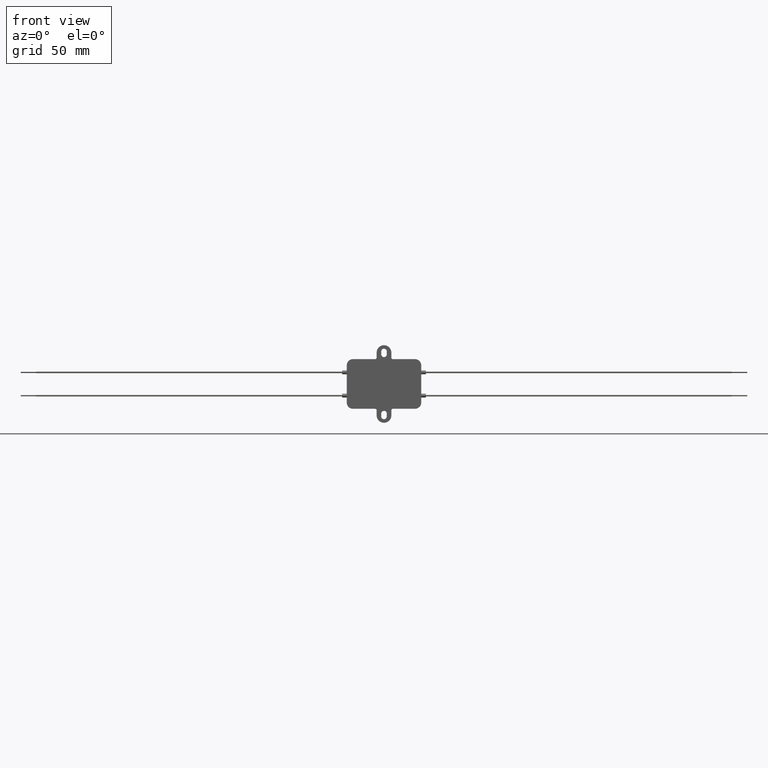
[diagram: clean part render]
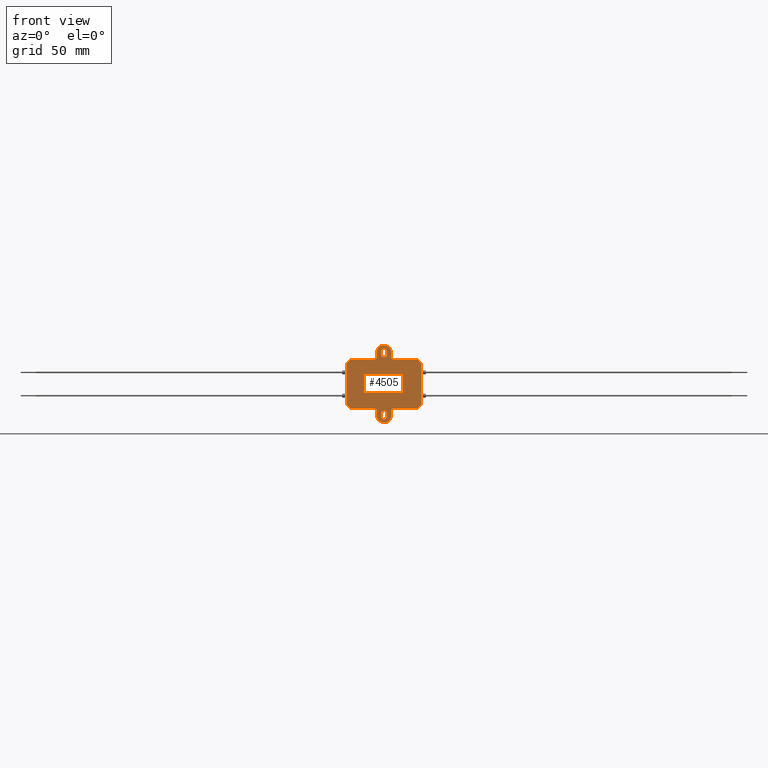
[diagram: same view with one face highlighted and labeled with its STEP entity id]
A machine part, front view. The second image highlights one B-rep face of the part: STEP entity #4505.
In plain terms, the highlighted planar face has unit normal (0, -1, 0).
Its self-contained STEP definition (entity closure, byte-faithful):
#31 = CARTESIAN_POINT ( 'NONE',  ( 19.25000000000000000, 0.0000000000000000000, 4.250000000000003600 ) ) ;
#44 = CARTESIAN_POINT ( 'NONE',  ( 24.00000000000000700, 0.0000000000000000000, -36.25000000000000700 ) ) ;
#54 = DIRECTION ( 'NONE',  ( 0.0000000000000000000, 0.0000000000000000000, -1.000000000000000000 ) ) ;
#55 = ORIENTED_EDGE ( 'NONE', *, *, #1021, .F. ) ;
#83 = VECTOR ( 'NONE', #1782, 1000.000000000000000 ) ;
#124 = VERTEX_POINT ( 'NONE', #849 ) ;
#139 = CARTESIAN_POINT ( 'NONE',  ( 19.25000000000000400, 0.0000000000000000000, 1.000000000000000900 ) ) ;
#186 = AXIS2_PLACEMENT_3D ( 'NONE', #2127, #4922, #2941 ) ;
#209 = FACE_BOUND ( 'NONE', #1481, .T. ) ;
#217 = CARTESIAN_POINT ( 'NONE',  ( 28.75000000000000400, 0.0000000000000000000, -36.25000000000000700 ) ) ;
#220 = CARTESIAN_POINT ( 'NONE',  ( 19.25000000000000000, 0.0000000000000000000, 4.250000000000003600 ) ) ;
#224 = LINE ( 'NONE', #4298, #4171 ) ;
#241 = CARTESIAN_POINT ( 'NONE',  ( 4.000000000000000000, 0.0000000000000000000, 0.0000000000000000000 ) ) ;
#285 = VERTEX_POINT ( 'NONE', #3720 ) ;
#315 = VERTEX_POINT ( 'NONE', #3000 ) ;
#354 = DIRECTION ( 'NONE',  ( -1.000000000000000000, -0.0000000000000000000, -0.0000000000000000000 ) ) ;
#378 = VERTEX_POINT ( 'NONE', #4230 ) ;
#381 = CIRCLE ( 'NONE', #3129, 1.799999999999996000 ) ;
#429 = DIRECTION ( 'NONE',  ( 0.0000000000000000000, 0.0000000000000000000, -1.000000000000000000 ) ) ;
#472 = CARTESIAN_POINT ( 'NONE',  ( 29.75000000000000400, 0.0000000000000000000, 1.000000000000000000 ) ) ;
#485 = CIRCLE ( 'NONE', #4390, 4.000000000000000000 ) ;
#489 = CARTESIAN_POINT ( 'NONE',  ( 24.00000000000000700, 0.0000000000000000000, -35.10000000000000900 ) ) ;
#563 = ORIENTED_EDGE ( 'NONE', *, *, #1320, .T. ) ;
#571 = ORIENTED_EDGE ( 'NONE', *, *, #2737, .T. ) ;
#585 = CARTESIAN_POINT ( 'NONE',  ( 24.00000000000000700, 0.0000000000000000000, -36.90000000000000600 ) ) ;
#606 = CARTESIAN_POINT ( 'NONE',  ( 28.75000000000000400, 0.0000000000000000000, 4.250000000000003600 ) ) ;
#634 = VERTEX_POINT ( 'NONE', #2006 ) ;
#701 = DIRECTION ( 'NONE',  ( -0.0000000000000000000, 1.000000000000000000, -0.0000000000000000000 ) ) ;
#705 = FACE_BOUND ( 'NONE', #1781, .T. ) ;
#732 = AXIS2_PLACEMENT_3D ( 'NONE', #3171, #802, #54 ) ;
#786 = CARTESIAN_POINT ( 'NONE',  ( 24.00000000000000700, 0.0000000000000000000, 4.900000000000001200 ) ) ;
#802 = DIRECTION ( 'NONE',  ( 0.0000000000000000000, -1.000000000000000000, 0.0000000000000000000 ) ) ;
#828 = CARTESIAN_POINT ( 'NONE',  ( 48.00000000000000000, 0.0000000000000000000, -28.00000000000000000 ) ) ;
#837 = DIRECTION ( 'NONE',  ( -8.163404592832026100E-016, 0.0000000000000000000, 1.000000000000000000 ) ) ;
#843 = CARTESIAN_POINT ( 'NONE',  ( 0.0000000000000000000, 0.0000000000000000000, 0.0000000000000000000 ) ) ;
#849 = CARTESIAN_POINT ( 'NONE',  ( 44.00000000000000000, 0.0000000000000000000, 0.0000000000000000000 ) ) ;
#876 = ORIENTED_EDGE ( 'NONE', *, *, #2412, .T. ) ;
#900 = AXIS2_PLACEMENT_3D ( 'NONE', #2421, #4441, #1318 ) ;
#938 = VERTEX_POINT ( 'NONE', #1136 ) ;
#954 = DIRECTION ( 'NONE',  ( 0.0000000000000000000, 0.0000000000000000000, -1.000000000000000000 ) ) ;
#986 = CIRCLE ( 'NONE', #2913, 4.750000000000002700 ) ;
#1004 = DIRECTION ( 'NONE',  ( 0.0000000000000000000, -0.0000000000000000000, -1.000000000000000000 ) ) ;
#1005 = LINE ( 'NONE', #2366, #4525 ) ;
#1006 = CARTESIAN_POINT ( 'NONE',  ( 24.00000000000000700, 0.0000000000000000000, 6.699999999999997500 ) ) ;
#1021 = EDGE_CURVE ( 'NONE', #4154, #1372, #2392, .T. ) ;
#1049 = CARTESIAN_POINT ( 'NONE',  ( 0.0000000000000000000, 0.0000000000000000000, 0.0000000000000000000 ) ) ;
#1099 = EDGE_CURVE ( 'NONE', #5009, #4564, #4650, .T. ) ;
#1123 = CARTESIAN_POINT ( 'NONE',  ( 24.00000000000000700, 0.0000000000000000000, -35.10000000000000900 ) ) ;
#1136 = CARTESIAN_POINT ( 'NONE',  ( 22.20000000000001000, 0.0000000000000000000, -36.90000000000000600 ) ) ;
#1139 = CARTESIAN_POINT ( 'NONE',  ( 24.00000000000000700, 0.0000000000000000000, 4.250000000000003600 ) ) ;
#1141 = ORIENTED_EDGE ( 'NONE', *, *, #3746, .F. ) ;
#1168 = ORIENTED_EDGE ( 'NONE', *, *, #1311, .T. ) ;
#1170 = DIRECTION ( 'NONE',  ( 1.000000000000000000, 0.0000000000000000000, 0.0000000000000000000 ) ) ;
#1171 = CARTESIAN_POINT ( 'NONE',  ( 24.00000000000000700, 0.0000000000000000000, -36.25000000000000700 ) ) ;
#1182 = VERTEX_POINT ( 'NONE', #1006 ) ;
#1207 = CARTESIAN_POINT ( 'NONE',  ( 28.75000000000000400, 0.0000000000000000000, 4.250000000000003600 ) ) ;
#1216 = AXIS2_PLACEMENT_3D ( 'NONE', #1382, #2205, #3756 ) ;
#1222 = AXIS2_PLACEMENT_3D ( 'NONE', #3892, #1248, #4418 ) ;
#1234 = AXIS2_PLACEMENT_3D ( 'NONE', #1049, #2173, #1004 ) ;
#1240 = CIRCLE ( 'NONE', #1359, 1.000000000000000000 ) ;
#1248 = DIRECTION ( 'NONE',  ( -0.0000000000000000000, -1.000000000000000000, -0.0000000000000000000 ) ) ;
#1297 = DIRECTION ( 'NONE',  ( -0.0000000000000000000, -1.000000000000000000, -0.0000000000000000000 ) ) ;
#1303 = VECTOR ( 'NONE', #4122, 1000.000000000000000 ) ;
#1311 = EDGE_CURVE ( 'NONE', #1391, #2832, #3422, .T. ) ;
#1318 = DIRECTION ( 'NONE',  ( 0.0000000000000000000, 0.0000000000000000000, -1.000000000000000000 ) ) ;
#1320 = EDGE_CURVE ( 'NONE', #1475, #4564, #3542, .T. ) ;
#1334 = ORIENTED_EDGE ( 'NONE', *, *, #3993, .F. ) ;
#1354 = DIRECTION ( 'NONE',  ( 0.0000000000000000000, 0.0000000000000000000, 1.000000000000000000 ) ) ;
#1358 = CARTESIAN_POINT ( 'NONE',  ( 0.0000000000000000000, 0.0000000000000000000, -32.00000000000000000 ) ) ;
#1359 = AXIS2_PLACEMENT_3D ( 'NONE', #472, #4855, #954 ) ;
#1372 = VERTEX_POINT ( 'NONE', #3493 ) ;
#1382 = CARTESIAN_POINT ( 'NONE',  ( 4.000000000000000000, 0.0000000000000000000, -28.00000000000000000 ) ) ;
#1391 = VERTEX_POINT ( 'NONE', #4292 ) ;
#1424 = AXIS2_PLACEMENT_3D ( 'NONE', #786, #4785, #3999 ) ;
#1428 = ORIENTED_EDGE ( 'NONE', *, *, #3296, .F. ) ;
#1440 = AXIS2_PLACEMENT_3D ( 'NONE', #1123, #4285, #4716 ) ;
#1472 = VERTEX_POINT ( 'NONE', #3986 ) ;
#1475 = VERTEX_POINT ( 'NONE', #1530 ) ;
#1481 = EDGE_LOOP ( 'NONE', ( #3392, #55, #2034, #1334, #1428 ) ) ;
#1494 = DIRECTION ( 'NONE',  ( 0.0000000000000000000, 0.0000000000000000000, -1.000000000000000000 ) ) ;
#1516 = EDGE_CURVE ( 'NONE', #2965, #3877, #2352, .T. ) ;
#1519 = CARTESIAN_POINT ( 'NONE',  ( 18.25000000000000400, 0.0000000000000000000, 0.0000000000000000000 ) ) ;
#1522 = LINE ( 'NONE', #3511, #4577 ) ;
#1530 = CARTESIAN_POINT ( 'NONE',  ( 0.0000000000000000000, 0.0000000000000000000, -28.00000000000000000 ) ) ;
#1559 = CARTESIAN_POINT ( 'NONE',  ( 24.00000000000000700, 0.0000000000000000000, -33.30000000000001100 ) ) ;
#1591 = CARTESIAN_POINT ( 'NONE',  ( 22.20000000000001000, 0.0000000000000000000, 3.100000000000005400 ) ) ;
#1616 = CARTESIAN_POINT ( 'NONE',  ( 48.00000000000000000, 0.0000000000000000000, 0.0000000000000000000 ) ) ;
#1643 = ORIENTED_EDGE ( 'NONE', *, *, #2118, .F. ) ;
#1687 = CARTESIAN_POINT ( 'NONE',  ( 44.00000000000000000, 0.0000000000000000000, -28.00000000000000000 ) ) ;
#1691 = CIRCLE ( 'NONE', #1222, 1.799999999999996000 ) ;
#1730 = EDGE_CURVE ( 'NONE', #634, #938, #381, .T. ) ;
#1736 = ORIENTED_EDGE ( 'NONE', *, *, #3236, .T. ) ;
#1781 = EDGE_LOOP ( 'NONE', ( #2891, #2025, #4833, #3094, #1856 ) ) ;
#1782 = DIRECTION ( 'NONE',  ( -8.163404592832026100E-016, -0.0000000000000000000, -1.000000000000000000 ) ) ;
#1793 = VERTEX_POINT ( 'NONE', #3737 ) ;
#1794 = CARTESIAN_POINT ( 'NONE',  ( 25.80000000000000400, 0.0000000000000000000, 3.100000000000005400 ) ) ;
#1807 = LINE ( 'NONE', #1591, #3789 ) ;
#1820 = AXIS2_PLACEMENT_3D ( 'NONE', #3669, #1297, #4145 ) ;
#1823 = ORIENTED_EDGE ( 'NONE', *, *, #2699, .F. ) ;
#1835 = VERTEX_POINT ( 'NONE', #5021 ) ;
#1856 = ORIENTED_EDGE ( 'NONE', *, *, #3064, .T. ) ;
#1962 = VERTEX_POINT ( 'NONE', #220 ) ;
#1978 = VECTOR ( 'NONE', #3456, 1000.000000000000000 ) ;
#2002 = DIRECTION ( 'NONE',  ( -0.0000000000000000000, -0.0000000000000000000, 1.000000000000000000 ) ) ;
#2006 = CARTESIAN_POINT ( 'NONE',  ( 25.80000000000000400, 0.0000000000000000000, -36.90000000000000600 ) ) ;
#2025 = ORIENTED_EDGE ( 'NONE', *, *, #3322, .T. ) ;
#2028 = ORIENTED_EDGE ( 'NONE', *, *, #3575, .T. ) ;
#2034 = ORIENTED_EDGE ( 'NONE', *, *, #2999, .F. ) ;
#2082 = EDGE_CURVE ( 'NONE', #285, #4769, #2220, .T. ) ;
#2101 = DIRECTION ( 'NONE',  ( 0.0000000000000000000, 1.000000000000000000, 0.0000000000000000000 ) ) ;
#2118 = EDGE_CURVE ( 'NONE', #4500, #2532, #1005, .T. ) ;
#2127 = CARTESIAN_POINT ( 'NONE',  ( 29.75000000000000400, 0.0000000000000000000, -33.00000000000000000 ) ) ;
#2158 = VECTOR ( 'NONE', #4822, 1000.000000000000000 ) ;
#2173 = DIRECTION ( 'NONE',  ( 0.0000000000000000000, -1.000000000000000000, 0.0000000000000000000 ) ) ;
#2190 = VERTEX_POINT ( 'NONE', #1207 ) ;
#2205 = DIRECTION ( 'NONE',  ( 0.0000000000000000000, -1.000000000000000000, 0.0000000000000000000 ) ) ;
#2207 = CIRCLE ( 'NONE', #186, 1.000000000000000900 ) ;
#2220 = CIRCLE ( 'NONE', #1440, 1.799999999999996000 ) ;
#2222 = LINE ( 'NONE', #1616, #2158 ) ;
#2226 = ORIENTED_EDGE ( 'NONE', *, *, #2245, .T. ) ;
#2245 = EDGE_CURVE ( 'NONE', #2759, #2532, #3581, .T. ) ;
#2272 = ORIENTED_EDGE ( 'NONE', *, *, #1516, .F. ) ;
#2342 = CARTESIAN_POINT ( 'NONE',  ( 0.0000000000000000000, 0.0000000000000000000, -4.000000000000000000 ) ) ;
#2352 = LINE ( 'NONE', #4382, #2987 ) ;
#2366 = CARTESIAN_POINT ( 'NONE',  ( 0.0000000000000000000, 0.0000000000000000000, 0.0000000000000000000 ) ) ;
#2392 = CIRCLE ( 'NONE', #1820, 1.799999999999996000 ) ;
#2412 = EDGE_CURVE ( 'NONE', #1793, #3877, #2207, .T. ) ;
#2421 = CARTESIAN_POINT ( 'NONE',  ( 18.25000000000000400, 0.0000000000000000000, 1.000000000000000000 ) ) ;
#2487 = VECTOR ( 'NONE', #3983, 1000.000000000000000 ) ;
#2532 = VERTEX_POINT ( 'NONE', #1519 ) ;
#2543 = FACE_OUTER_BOUND ( 'NONE', #5064, .T. ) ;
#2552 = EDGE_CURVE ( 'NONE', #1962, #2190, #986, .T. ) ;
#2613 = LINE ( 'NONE', #843, #2487 ) ;
#2648 = ORIENTED_EDGE ( 'NONE', *, *, #4058, .F. ) ;
#2649 = LINE ( 'NONE', #1794, #3963 ) ;
#2687 = DIRECTION ( 'NONE',  ( 0.0000000000000000000, -1.000000000000000000, 0.0000000000000000000 ) ) ;
#2699 = EDGE_CURVE ( 'NONE', #1475, #4705, #4881, .T. ) ;
#2737 = EDGE_CURVE ( 'NONE', #2965, #4006, #4379, .T. ) ;
#2739 = DIRECTION ( 'NONE',  ( -0.0000000000000000000, -0.0000000000000000000, 1.000000000000000000 ) ) ;
#2744 = DIRECTION ( 'NONE',  ( 0.0000000000000000000, 0.0000000000000000000, 1.000000000000000000 ) ) ;
#2759 = VERTEX_POINT ( 'NONE', #139 ) ;
#2782 = ORIENTED_EDGE ( 'NONE', *, *, #5074, .T. ) ;
#2832 = VERTEX_POINT ( 'NONE', #4921 ) ;
#2878 = DIRECTION ( 'NONE',  ( 0.0000000000000000000, 0.0000000000000000000, 1.000000000000000000 ) ) ;
#2888 = DIRECTION ( 'NONE',  ( 0.0000000000000000000, -1.000000000000000000, 0.0000000000000000000 ) ) ;
#2891 = ORIENTED_EDGE ( 'NONE', *, *, #2082, .T. ) ;
#2913 = AXIS2_PLACEMENT_3D ( 'NONE', #1139, #3889, #2744 ) ;
#2934 = AXIS2_PLACEMENT_3D ( 'NONE', #44, #4373, #429 ) ;
#2941 = DIRECTION ( 'NONE',  ( 0.0000000000000000000, 0.0000000000000000000, -1.000000000000000000 ) ) ;
#2965 = VERTEX_POINT ( 'NONE', #4674 ) ;
#2982 = CIRCLE ( 'NONE', #732, 4.000000000000000000 ) ;
#2987 = VECTOR ( 'NONE', #354, 1000.000000000000000 ) ;
#2999 = EDGE_CURVE ( 'NONE', #1835, #4154, #1807, .T. ) ;
#3000 = CARTESIAN_POINT ( 'NONE',  ( 25.80000000000000400, 0.0000000000000000000, 4.900000000000001200 ) ) ;
#3024 = EDGE_CURVE ( 'NONE', #378, #634, #1522, .T. ) ;
#3064 = EDGE_CURVE ( 'NONE', #938, #285, #4844, .T. ) ;
#3090 = CARTESIAN_POINT ( 'NONE',  ( 4.000000000000000000, 0.0000000000000000000, -32.00000000000000000 ) ) ;
#3094 = ORIENTED_EDGE ( 'NONE', *, *, #1730, .T. ) ;
#3129 = AXIS2_PLACEMENT_3D ( 'NONE', #585, #2101, #1354 ) ;
#3134 = EDGE_CURVE ( 'NONE', #3655, #4006, #2222, .T. ) ;
#3136 = DIRECTION ( 'NONE',  ( 0.0000000000000000000, 0.0000000000000000000, -1.000000000000000000 ) ) ;
#3171 = CARTESIAN_POINT ( 'NONE',  ( 4.000000000000000000, 0.0000000000000000000, -4.000000000000000000 ) ) ;
#3186 = AXIS2_PLACEMENT_3D ( 'NONE', #4225, #701, #3839 ) ;
#3236 = EDGE_CURVE ( 'NONE', #4500, #4705, #2982, .T. ) ;
#3248 = VECTOR ( 'NONE', #4336, 1000.000000000000000 ) ;
#3296 = EDGE_CURVE ( 'NONE', #315, #1182, #4972, .T. ) ;
#3321 = DIRECTION ( 'NONE',  ( 0.0000000000000000000, 0.0000000000000000000, -1.000000000000000000 ) ) ;
#3322 = EDGE_CURVE ( 'NONE', #4769, #378, #4408, .T. ) ;
#3327 = ORIENTED_EDGE ( 'NONE', *, *, #4560, .T. ) ;
#3347 = CARTESIAN_POINT ( 'NONE',  ( 24.00000000000000700, 0.0000000000000000000, -41.00000000000000700 ) ) ;
#3352 = EDGE_CURVE ( 'NONE', #1472, #3810, #1240, .T. ) ;
#3371 = CARTESIAN_POINT ( 'NONE',  ( 28.75000000000000000, 0.0000000000000000000, 1.000000000000000900 ) ) ;
#3392 = ORIENTED_EDGE ( 'NONE', *, *, #3518, .F. ) ;
#3397 = CIRCLE ( 'NONE', #2934, 4.750000000000004400 ) ;
#3413 = PLANE ( 'NONE',  #1234 ) ;
#3422 = LINE ( 'NONE', #4137, #83 ) ;
#3456 = DIRECTION ( 'NONE',  ( -8.163404592832026100E-016, 0.0000000000000000000, -1.000000000000000000 ) ) ;
#3493 = CARTESIAN_POINT ( 'NONE',  ( 25.80000000000000400, 0.0000000000000000000, 3.100000000000005400 ) ) ;
#3511 = CARTESIAN_POINT ( 'NONE',  ( 25.80000000000000400, 0.0000000000000000000, -35.10000000000000900 ) ) ;
#3518 = EDGE_CURVE ( 'NONE', #1372, #315, #2649, .T. ) ;
#3542 = CIRCLE ( 'NONE', #1216, 4.000000000000000000 ) ;
#3563 = DIRECTION ( 'NONE',  ( 0.0000000000000000000, 0.0000000000000000000, -1.000000000000000000 ) ) ;
#3564 = ORIENTED_EDGE ( 'NONE', *, *, #4520, .F. ) ;
#3575 = EDGE_CURVE ( 'NONE', #5009, #1391, #4776, .T. ) ;
#3581 = CIRCLE ( 'NONE', #900, 1.000000000000000000 ) ;
#3599 = AXIS2_PLACEMENT_3D ( 'NONE', #1687, #2888, #3321 ) ;
#3617 = ORIENTED_EDGE ( 'NONE', *, *, #3134, .F. ) ;
#3655 = VERTEX_POINT ( 'NONE', #4240 ) ;
#3669 = CARTESIAN_POINT ( 'NONE',  ( 24.00000000000000700, 0.0000000000000000000, 3.100000000000005400 ) ) ;
#3683 = CARTESIAN_POINT ( 'NONE',  ( 22.20000000000001000, 0.0000000000000000000, 3.100000000000005400 ) ) ;
#3693 = EDGE_CURVE ( 'NONE', #4511, #1793, #224, .T. ) ;
#3720 = CARTESIAN_POINT ( 'NONE',  ( 22.20000000000001000, 0.0000000000000000000, -35.10000000000000900 ) ) ;
#3737 = CARTESIAN_POINT ( 'NONE',  ( 28.75000000000000000, 0.0000000000000000000, -33.00000000000000000 ) ) ;
#3746 = EDGE_CURVE ( 'NONE', #2759, #1962, #3867, .T. ) ;
#3756 = DIRECTION ( 'NONE',  ( 0.0000000000000000000, 0.0000000000000000000, -1.000000000000000000 ) ) ;
#3789 = VECTOR ( 'NONE', #3136, 1000.000000000000000 ) ;
#3810 = VERTEX_POINT ( 'NONE', #3371 ) ;
#3814 = AXIS2_PLACEMENT_3D ( 'NONE', #489, #4884, #2878 ) ;
#3839 = DIRECTION ( 'NONE',  ( 0.0000000000000000000, 0.0000000000000000000, -1.000000000000000000 ) ) ;
#3867 = LINE ( 'NONE', #31, #3248 ) ;
#3877 = VERTEX_POINT ( 'NONE', #3944 ) ;
#3889 = DIRECTION ( 'NONE',  ( -0.0000000000000000000, 1.000000000000000000, -0.0000000000000000000 ) ) ;
#3892 = CARTESIAN_POINT ( 'NONE',  ( 24.00000000000000700, 0.0000000000000000000, 4.900000000000001200 ) ) ;
#3927 = DIRECTION ( 'NONE',  ( 0.0000000000000000000, 0.0000000000000000000, -1.000000000000000000 ) ) ;
#3944 = CARTESIAN_POINT ( 'NONE',  ( 29.75000000000000400, 0.0000000000000000000, -32.00000000000000000 ) ) ;
#3963 = VECTOR ( 'NONE', #4572, 1000.000000000000000 ) ;
#3983 = DIRECTION ( 'NONE',  ( 1.000000000000000000, 0.0000000000000000000, 0.0000000000000000000 ) ) ;
#3986 = CARTESIAN_POINT ( 'NONE',  ( 29.75000000000000400, 0.0000000000000000000, 0.0000000000000000000 ) ) ;
#3992 = DIRECTION ( 'NONE',  ( 0.0000000000000000000, -1.000000000000000000, 0.0000000000000000000 ) ) ;
#3993 = EDGE_CURVE ( 'NONE', #1182, #1835, #1691, .T. ) ;
#3999 = DIRECTION ( 'NONE',  ( 0.0000000000000000000, 0.0000000000000000000, -1.000000000000000000 ) ) ;
#4006 = VERTEX_POINT ( 'NONE', #828 ) ;
#4033 = ORIENTED_EDGE ( 'NONE', *, *, #4907, .T. ) ;
#4050 = ORIENTED_EDGE ( 'NONE', *, *, #3693, .T. ) ;
#4058 = EDGE_CURVE ( 'NONE', #1472, #124, #2613, .T. ) ;
#4068 = CARTESIAN_POINT ( 'NONE',  ( 18.25000000000000400, 0.0000000000000000000, -32.00000000000000000 ) ) ;
#4122 = DIRECTION ( 'NONE',  ( -1.000000000000000000, -0.0000000000000000000, -0.0000000000000000000 ) ) ;
#4137 = CARTESIAN_POINT ( 'NONE',  ( 19.25000000000000000, 0.0000000000000000000, -36.25000000000000700 ) ) ;
#4145 = DIRECTION ( 'NONE',  ( 0.0000000000000000000, 0.0000000000000000000, -1.000000000000000000 ) ) ;
#4153 = AXIS2_PLACEMENT_3D ( 'NONE', #1171, #3992, #3927 ) ;
#4154 = VERTEX_POINT ( 'NONE', #3683 ) ;
#4171 = VECTOR ( 'NONE', #837, 1000.000000000000000 ) ;
#4192 = VECTOR ( 'NONE', #2002, 1000.000000000000000 ) ;
#4225 = CARTESIAN_POINT ( 'NONE',  ( 18.25000000000000400, 0.0000000000000000000, -33.00000000000000000 ) ) ;
#4230 = CARTESIAN_POINT ( 'NONE',  ( 25.80000000000000400, 0.0000000000000000000, -35.10000000000000900 ) ) ;
#4240 = CARTESIAN_POINT ( 'NONE',  ( 48.00000000000000000, 0.0000000000000000000, -4.000000000000000000 ) ) ;
#4249 = VERTEX_POINT ( 'NONE', #3347 ) ;
#4285 = DIRECTION ( 'NONE',  ( 0.0000000000000000000, 1.000000000000000000, 0.0000000000000000000 ) ) ;
#4292 = CARTESIAN_POINT ( 'NONE',  ( 19.25000000000000400, 0.0000000000000000000, -33.00000000000000000 ) ) ;
#4298 = CARTESIAN_POINT ( 'NONE',  ( 28.75000000000000400, 0.0000000000000000000, -36.25000000000000700 ) ) ;
#4336 = DIRECTION ( 'NONE',  ( -8.163404592832026100E-016, -0.0000000000000000000, 1.000000000000000000 ) ) ;
#4347 = CIRCLE ( 'NONE', #4153, 4.750000000000004400 ) ;
#4373 = DIRECTION ( 'NONE',  ( 0.0000000000000000000, -1.000000000000000000, 0.0000000000000000000 ) ) ;
#4375 = CARTESIAN_POINT ( 'NONE',  ( 0.0000000000000000000, 0.0000000000000000000, 0.0000000000000000000 ) ) ;
#4379 = CIRCLE ( 'NONE', #3599, 4.000000000000000000 ) ;
#4382 = CARTESIAN_POINT ( 'NONE',  ( 0.0000000000000000000, 0.0000000000000000000, -32.00000000000000000 ) ) ;
#4390 = AXIS2_PLACEMENT_3D ( 'NONE', #5057, #2687, #1494 ) ;
#4408 = CIRCLE ( 'NONE', #3814, 1.799999999999996000 ) ;
#4418 = DIRECTION ( 'NONE',  ( 0.0000000000000000000, 0.0000000000000000000, -1.000000000000000000 ) ) ;
#4441 = DIRECTION ( 'NONE',  ( -0.0000000000000000000, 1.000000000000000000, -0.0000000000000000000 ) ) ;
#4500 = VERTEX_POINT ( 'NONE', #241 ) ;
#4505 = ADVANCED_FACE ( 'NONE', ( #2543, #705, #209 ), #3413, .T. ) ;
#4511 = VERTEX_POINT ( 'NONE', #217 ) ;
#4520 = EDGE_CURVE ( 'NONE', #2190, #3810, #4915, .T. ) ;
#4525 = VECTOR ( 'NONE', #1170, 1000.000000000000000 ) ;
#4560 = EDGE_CURVE ( 'NONE', #2832, #4249, #4347, .T. ) ;
#4564 = VERTEX_POINT ( 'NONE', #3090 ) ;
#4572 = DIRECTION ( 'NONE',  ( 0.0000000000000000000, 0.0000000000000000000, 1.000000000000000000 ) ) ;
#4577 = VECTOR ( 'NONE', #3563, 1000.000000000000000 ) ;
#4650 = LINE ( 'NONE', #1358, #1303 ) ;
#4674 = CARTESIAN_POINT ( 'NONE',  ( 44.00000000000000000, 0.0000000000000000000, -32.00000000000000000 ) ) ;
#4705 = VERTEX_POINT ( 'NONE', #2342 ) ;
#4709 = ORIENTED_EDGE ( 'NONE', *, *, #1099, .F. ) ;
#4716 = DIRECTION ( 'NONE',  ( 0.0000000000000000000, 0.0000000000000000000, 1.000000000000000000 ) ) ;
#4727 = CARTESIAN_POINT ( 'NONE',  ( 22.20000000000001000, 0.0000000000000000000, -35.10000000000000900 ) ) ;
#4769 = VERTEX_POINT ( 'NONE', #1559 ) ;
#4776 = CIRCLE ( 'NONE', #3186, 1.000000000000000900 ) ;
#4785 = DIRECTION ( 'NONE',  ( -0.0000000000000000000, -1.000000000000000000, -0.0000000000000000000 ) ) ;
#4822 = DIRECTION ( 'NONE',  ( 0.0000000000000000000, 0.0000000000000000000, -1.000000000000000000 ) ) ;
#4833 = ORIENTED_EDGE ( 'NONE', *, *, #3024, .T. ) ;
#4844 = LINE ( 'NONE', #4727, #4906 ) ;
#4855 = DIRECTION ( 'NONE',  ( -0.0000000000000000000, 1.000000000000000000, -0.0000000000000000000 ) ) ;
#4881 = LINE ( 'NONE', #4375, #4192 ) ;
#4884 = DIRECTION ( 'NONE',  ( 0.0000000000000000000, 1.000000000000000000, 0.0000000000000000000 ) ) ;
#4906 = VECTOR ( 'NONE', #2739, 1000.000000000000000 ) ;
#4907 = EDGE_CURVE ( 'NONE', #4249, #4511, #3397, .T. ) ;
#4915 = LINE ( 'NONE', #606, #1978 ) ;
#4921 = CARTESIAN_POINT ( 'NONE',  ( 19.25000000000000000, 0.0000000000000000000, -36.25000000000000700 ) ) ;
#4922 = DIRECTION ( 'NONE',  ( -0.0000000000000000000, 1.000000000000000000, -0.0000000000000000000 ) ) ;
#4942 = ORIENTED_EDGE ( 'NONE', *, *, #3352, .T. ) ;
#4972 = CIRCLE ( 'NONE', #1424, 1.799999999999996000 ) ;
#5009 = VERTEX_POINT ( 'NONE', #4068 ) ;
#5021 = CARTESIAN_POINT ( 'NONE',  ( 22.20000000000001000, 0.0000000000000000000, 4.900000000000001200 ) ) ;
#5054 = ORIENTED_EDGE ( 'NONE', *, *, #2552, .F. ) ;
#5057 = CARTESIAN_POINT ( 'NONE',  ( 44.00000000000000000, 0.0000000000000000000, -4.000000000000000000 ) ) ;
#5064 = EDGE_LOOP ( 'NONE', ( #2272, #571, #3617, #2782, #2648, #4942, #3564, #5054, #1141, #2226, #1643, #1736, #1823, #563, #4709, #2028, #1168, #3327, #4033, #4050, #876 ) ) ;
#5074 = EDGE_CURVE ( 'NONE', #3655, #124, #485, .T. ) ;